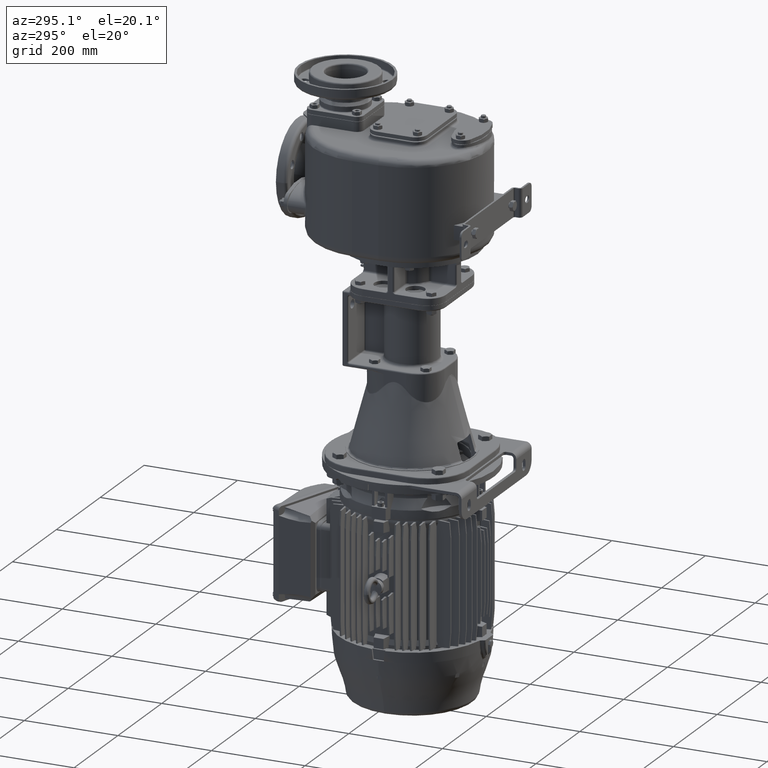
[diagram: clean part render]
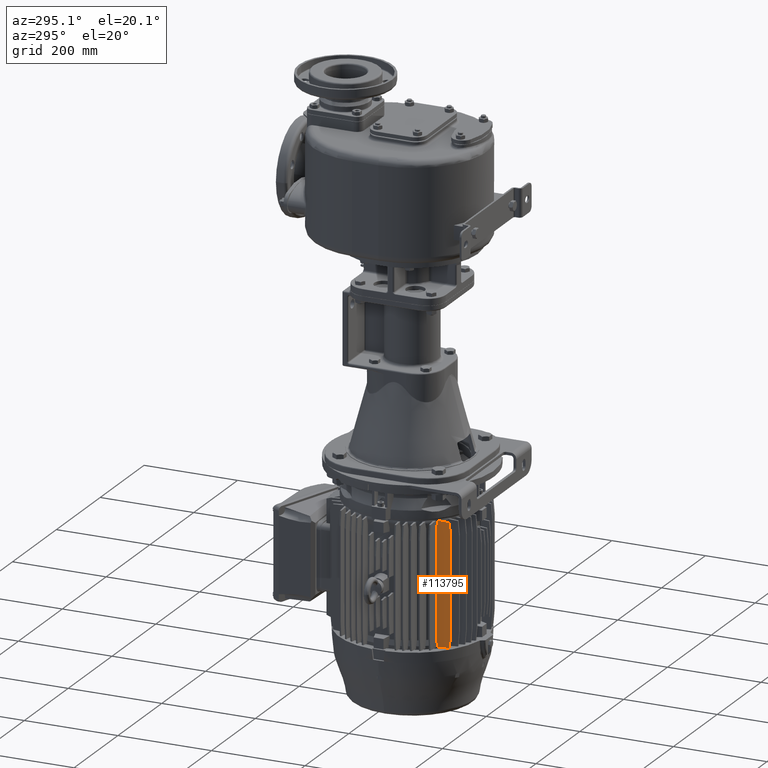
[diagram: same view with one face highlighted and labeled with its STEP entity id]
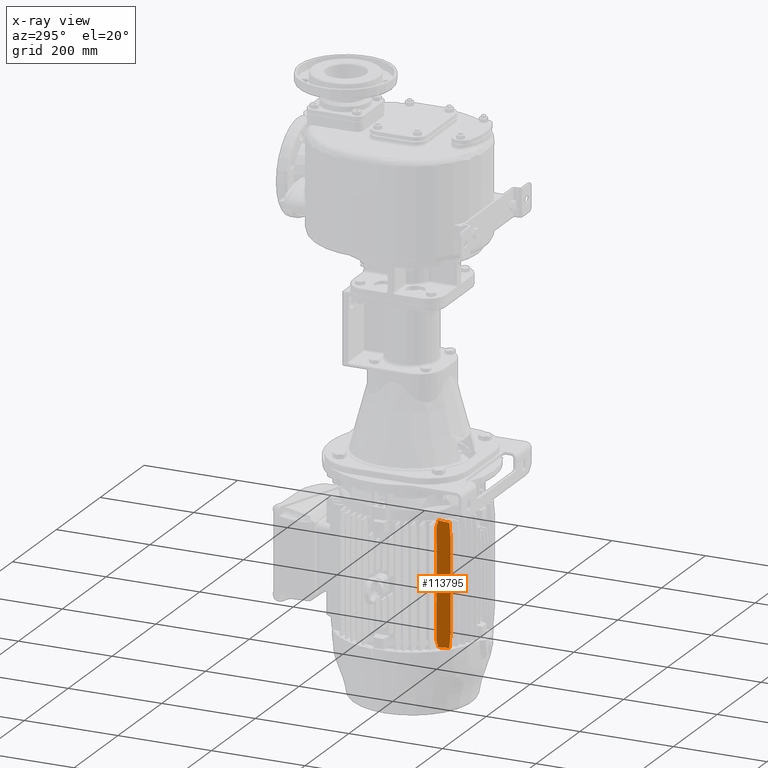
[diagram: x-ray of the same camera — body ghosted, the highlighted face saturated]
A machine part, auxiliary view. The second image highlights one B-rep face of the part: STEP entity #113795.
The next image is the same camera in x-ray: the body ghosted, the highlighted face saturated — about 0% of this face is hidden behind the body in this view.
In plain terms, the highlighted planar face has unit normal (0.9994, 0.0349, 0).
Its self-contained STEP definition (entity closure, byte-faithful):
#11971=DIRECTION('',(1.118896511170E-14,-1.258758575066E-14,1.E0));
#11972=VECTOR('',#11971,5.080310671573E0);
#11973=CARTESIAN_POINT('',(-9.754995855831E1,5.758085050513E1,
-8.570375340094E2));
#11974=LINE('',#11973,#11972);
#12242=DIRECTION('',(0.E0,-1.118896511170E-14,1.E0));
#12243=VECTOR('',#12242,5.080310671573E0);
#12244=CARTESIAN_POINT('',(-9.754995855831E1,5.758085050513E1,
-6.006427766622E2));
#12245=LINE('',#12244,#12243);
#22571=CARTESIAN_POINT('',(-9.754995855831E1,5.758085050513E1,
-5.955624659906E2));
#22572=CARTESIAN_POINT('',(-9.752622885056E1,5.690132058378E1,
-5.956036625179E2));
#22573=CARTESIAN_POINT('',(-9.747852500529E1,5.553526118828E1,
-5.956869301266E2));
#22574=CARTESIAN_POINT('',(-9.740606446018E1,5.346026266544E1,
-5.958147644814E2));
#22575=CARTESIAN_POINT('',(-9.733321362985E1,5.137408783760E1,
-5.959446173310E2));
#22576=CARTESIAN_POINT('',(-9.725953999831E1,4.926435105957E1,
-5.960772483081E2));
#22577=CARTESIAN_POINT('',(-9.718491663536E1,4.712741755647E1,
-5.962128950563E2));
#22578=CARTESIAN_POINT('',(-9.710935811853E1,4.496370466074E1,
-5.963515385819E2));
#22579=CARTESIAN_POINT('',(-9.703278524479E1,4.277094471565E1,
-5.964933325752E2));
#22580=CARTESIAN_POINT('',(-9.695511656431E1,4.054680373245E1,
-5.966384386487E2));
#22581=CARTESIAN_POINT('',(-9.687627729446E1,3.828914607842E1,
-5.967870128791E2));
#22582=CARTESIAN_POINT('',(-9.679657029844E1,3.600662274555E1,
-5.969384883757E2));
#22583=CARTESIAN_POINT('',(-9.674248513621E1,3.445786019498E1,
-5.970421166218E2));
#22584=CARTESIAN_POINT('',(-9.671523671339E1,3.367756745741E1,
-5.970945351676E2));
#22608=DIRECTION('',(0.E0,0.E0,-1.E0));
#22609=VECTOR('',#22608,2.370833117139E2);
#22610=CARTESIAN_POINT('',(-9.764677210992E1,6.035322789009E1,
-6.077583441431E2));
#22611=LINE('',#22610,#22609);
#22612=DIRECTION('',(1.209643062376E-9,2.513375636897E-7,-1.E0));
#22613=VECTOR('',#22612,1.979581359304E2);
#22614=CARTESIAN_POINT('',(-9.662201205961E1,3.100788292591E1,
-6.273217776635E2));
#22615=LINE('',#22614,#22613);
#22623=CARTESIAN_POINT('',(-9.662201182015E1,3.100793268023E1,
-8.252799135939E2));
#22624=CARTESIAN_POINT('',(-9.663245855996E1,3.130708816728E1,
-8.286510831648E2));
#22625=CARTESIAN_POINT('',(-9.665329178609E1,3.190366614096E1,
-8.353844436199E2));
#22626=CARTESIAN_POINT('',(-9.668424138630E1,3.278998078107E1,
-8.454199192354E2));
#22627=CARTESIAN_POINT('',(-9.670491895698E1,3.338202570004E1,
-8.521424364300E2));
#22628=CARTESIAN_POINT('',(-9.671524366907E1,3.367768677039E1,
-8.555054819032E2));
#22635=CARTESIAN_POINT('',(-9.662201182015E1,3.100793268023E1,
-8.252799135939E2));
#22655=CARTESIAN_POINT('',(-9.671524366907E1,3.367768677039E1,
-8.555054819032E2));
#22656=CARTESIAN_POINT('',(-9.674249187267E1,3.445797323028E1,
-8.555578999955E2));
#22657=CARTESIAN_POINT('',(-9.679657550554E1,3.600680892622E1,
-8.556615198399E2));
#22658=CARTESIAN_POINT('',(-9.687628231969E1,3.828928004977E1,
-8.558129970901E2));
#22659=CARTESIAN_POINT('',(-9.695512085992E1,4.054692940416E1,
-8.559615692846E2));
#22660=CARTESIAN_POINT('',(-9.703278898179E1,4.277105101618E1,
-8.561066744062E2));
#22661=CARTESIAN_POINT('',(-9.710936127340E1,4.496379519541E1,
-8.562484672218E2));
#22662=CARTESIAN_POINT('',(-9.718491923499E1,4.712749194881E1,
-8.563871096911E2));
#22663=CARTESIAN_POINT('',(-9.725954205368E1,4.926440993152E1,
-8.565227554065E2));
#22664=CARTESIAN_POINT('',(-9.733321515667E1,5.137413155640E1,
-8.566553854013E2));
#22665=CARTESIAN_POINT('',(-9.740606546776E1,5.346029151948E1,
-8.567852373023E2));
#22666=CARTESIAN_POINT('',(-9.747852550234E1,5.553527542182E1,
-8.569130707426E2));
#22667=CARTESIAN_POINT('',(-9.752622901505E1,5.690132529435E1,
-8.569963377676E2));
#22668=CARTESIAN_POINT('',(-9.754995855831E1,5.758085050513E1,
-8.570375340094E2));
#22674=CARTESIAN_POINT('',(-9.671523671339E1,3.367756745741E1,
-5.970945351676E2));
#22675=CARTESIAN_POINT('',(-9.670476491146E1,3.337769428513E1,
-6.005054919477E2));
#22676=CARTESIAN_POINT('',(-9.668390166202E1,3.278020752891E1,
-6.072917069028E2));
#22677=CARTESIAN_POINT('',(-9.665302626726E1,3.189609974480E1,
-6.173003245457E2));
#22678=CARTESIAN_POINT('',(-9.663234871820E1,3.130388609935E1,
-6.239861331785E2));
#22679=CARTESIAN_POINT('',(-9.662201205961E1,3.100788292591E1,
-6.273217776635E2));
#22688=CARTESIAN_POINT('',(-9.662201205961E1,3.100788292591E1,
-6.273217776635E2));
#22695=CARTESIAN_POINT('',(-9.754995855831E1,5.758085050513E1,
-8.519572233378E2));
#22696=CARTESIAN_POINT('',(-9.756088030671E1,5.789360845880E1,
-8.511483953836E2));
#22697=CARTESIAN_POINT('',(-9.758261535088E1,5.851601868876E1,
-8.495428424883E2));
#22698=CARTESIAN_POINT('',(-9.761493986435E1,5.944167164364E1,
-8.471671830464E2));
#22699=CARTESIAN_POINT('',(-9.763620389567E1,6.005059383026E1,
-8.456124054833E2));
#22700=CARTESIAN_POINT('',(-9.764677210992E1,6.035322789009E1,
-8.448416558569E2));
#23397=CARTESIAN_POINT('',(-9.764677210992E1,6.035322789009E1,
-6.077583441431E2));
#23398=CARTESIAN_POINT('',(-9.763621095451E1,6.005079596902E1,
-6.069881093245E2));
#23399=CARTESIAN_POINT('',(-9.761495628182E1,5.944214177828E1,
-6.054340195256E2));
#23400=CARTESIAN_POINT('',(-9.758263243533E1,5.851650792333E1,
-6.030584171979E2));
#23401=CARTESIAN_POINT('',(-9.756088760458E1,5.789381744240E1,
-6.014521450719E2));
#23402=CARTESIAN_POINT('',(-9.754995855831E1,5.758085050513E1,
-6.006427766622E2));
#84365=CARTESIAN_POINT('',(-9.754995855831E1,5.758085050513E1,
-6.006427766622E2));
#84367=VERTEX_POINT('',#84365);
#84369=CARTESIAN_POINT('',(-9.754995855831E1,5.758085050513E1,
-5.955624659906E2));
#84370=VERTEX_POINT('',#84369);
#84845=CARTESIAN_POINT('',(-9.754995855831E1,5.758085050513E1,
-8.570375340094E2));
#84846=CARTESIAN_POINT('',(-9.754995855831E1,5.758085050513E1,
-8.519572233378E2));
#84847=VERTEX_POINT('',#84845);
#84848=VERTEX_POINT('',#84846);
#85187=CARTESIAN_POINT('',(-9.671524366907E1,3.367768677039E1,
-8.555054819032E2));
#85189=VERTEX_POINT('',#85187);
#85518=CARTESIAN_POINT('',(-9.671523671339E1,3.367756745741E1,
-5.970945351676E2));
#85519=VERTEX_POINT('',#85518);
#85955=CARTESIAN_POINT('',(-9.764677210992E1,6.035322789009E1,
-6.077583441431E2));
#85956=CARTESIAN_POINT('',(-9.764677210992E1,6.035322789009E1,
-8.448416558569E2));
#85957=VERTEX_POINT('',#85955);
#85958=VERTEX_POINT('',#85956);
#85961=VERTEX_POINT('',#22688);
#85962=VERTEX_POINT('',#22635);
#113771=CARTESIAN_POINT('',(-9.662201182015E1,3.100793268023E1,-8.573E2));
#113772=DIRECTION('',(9.993908270190E-1,3.489949670505E-2,0.E0));
#113773=DIRECTION('',(3.489949670505E-2,-9.993908270190E-1,0.E0));
#113774=AXIS2_PLACEMENT_3D('',#113771,#113772,#113773);
#113775=PLANE('',#113774);
#113777=ORIENTED_EDGE('',*,*,#113776,.T.);
#113779=ORIENTED_EDGE('',*,*,#113778,.T.);
#113781=ORIENTED_EDGE('',*,*,#113780,.T.);
#113782=ORIENTED_EDGE('',*,*,#101972,.T.);
#113784=ORIENTED_EDGE('',*,*,#113783,.T.);
#113786=ORIENTED_EDGE('',*,*,#113785,.F.);
#113788=ORIENTED_EDGE('',*,*,#113787,.T.);
#113789=ORIENTED_EDGE('',*,*,#102267,.T.);
#113790=ORIENTED_EDGE('',*,*,#113762,.T.);
#113792=ORIENTED_EDGE('',*,*,#113791,.T.);
#113793=EDGE_LOOP('',(#113777,#113779,#113781,#113782,#113784,#113786,#113788,
#113789,#113790,#113792));
#113794=FACE_OUTER_BOUND('',#113793,.F.);
#113795=ADVANCED_FACE('',(#113794),#113775,.F.);
#22585=B_SPLINE_CURVE_WITH_KNOTS('',3,(#22571,#22572,#22573,#22574,#22575,
#22576,#22577,#22578,#22579,#22580,#22581,#22582,#22583,#22584),.UNSPECIFIED.,
.F.,.F.,(4,1,1,1,1,1,1,1,1,1,1,4),(0.E0,9.090909090909E-2,1.818181818182E-1,
2.727272727273E-1,3.636363636364E-1,4.545454545455E-1,5.454545454545E-1,
6.363636363636E-1,7.272727272727E-1,8.181818181818E-1,9.090909090909E-1,1.E0),
.UNSPECIFIED.);
#22629=B_SPLINE_CURVE_WITH_KNOTS('',3,(#22623,#22624,#22625,#22626,#22627,
#22628),.UNSPECIFIED.,.F.,.F.,(4,1,1,4),(0.E0,3.333333333333E-1,
6.666666666667E-1,1.E0),.UNSPECIFIED.);
#22669=B_SPLINE_CURVE_WITH_KNOTS('',3,(#22655,#22656,#22657,#22658,#22659,
#22660,#22661,#22662,#22663,#22664,#22665,#22666,#22667,#22668),.UNSPECIFIED.,
.F.,.F.,(4,1,1,1,1,1,1,1,1,1,1,4),(0.E0,9.090909090909E-2,1.818181818182E-1,
2.727272727273E-1,3.636363636364E-1,4.545454545455E-1,5.454545454545E-1,
6.363636363636E-1,7.272727272727E-1,8.181818181818E-1,9.090909090909E-1,1.E0),
.UNSPECIFIED.);
#22680=B_SPLINE_CURVE_WITH_KNOTS('',3,(#22674,#22675,#22676,#22677,#22678,
#22679),.UNSPECIFIED.,.F.,.F.,(4,1,1,4),(0.E0,3.333333333333E-1,
6.666666666667E-1,1.E0),.UNSPECIFIED.);
#22701=B_SPLINE_CURVE_WITH_KNOTS('',3,(#22695,#22696,#22697,#22698,#22699,
#22700),.UNSPECIFIED.,.F.,.F.,(4,1,1,4),(0.E0,3.333333333333E-1,
6.666666666667E-1,1.E0),.UNSPECIFIED.);
#23403=B_SPLINE_CURVE_WITH_KNOTS('',3,(#23397,#23398,#23399,#23400,#23401,
#23402),.UNSPECIFIED.,.F.,.F.,(4,1,1,4),(0.E0,3.333333333333E-1,
6.666666666667E-1,1.E0),.UNSPECIFIED.);
#101972=EDGE_CURVE('',#84847,#84848,#11974,.T.);
#102267=EDGE_CURVE('',#84367,#84370,#12245,.T.);
#113762=EDGE_CURVE('',#84370,#85519,#22585,.T.);
#113776=EDGE_CURVE('',#85961,#85962,#22615,.T.);
#113778=EDGE_CURVE('',#85962,#85189,#22629,.T.);
#113780=EDGE_CURVE('',#85189,#84847,#22669,.T.);
#113783=EDGE_CURVE('',#84848,#85958,#22701,.T.);
#113785=EDGE_CURVE('',#85957,#85958,#22611,.T.);
#113787=EDGE_CURVE('',#85957,#84367,#23403,.T.);
#113791=EDGE_CURVE('',#85519,#85961,#22680,.T.);